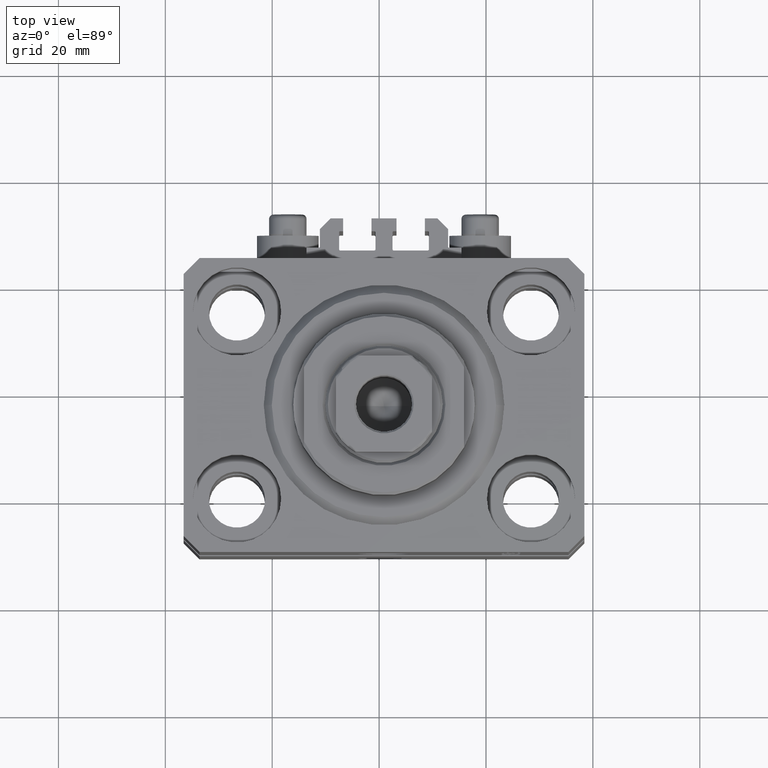
[diagram: clean part render]
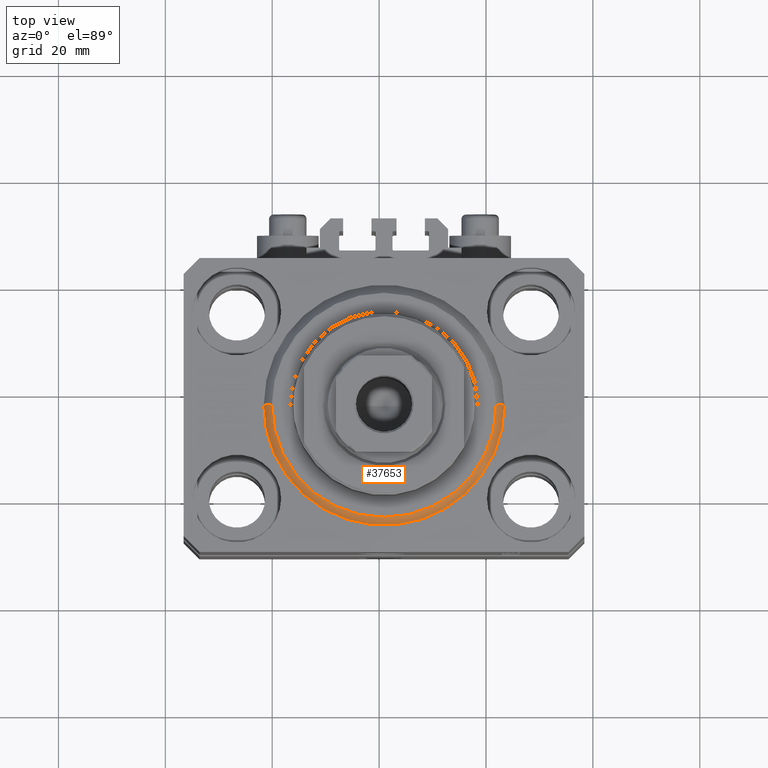
[diagram: same view with one face highlighted and labeled with its STEP entity id]
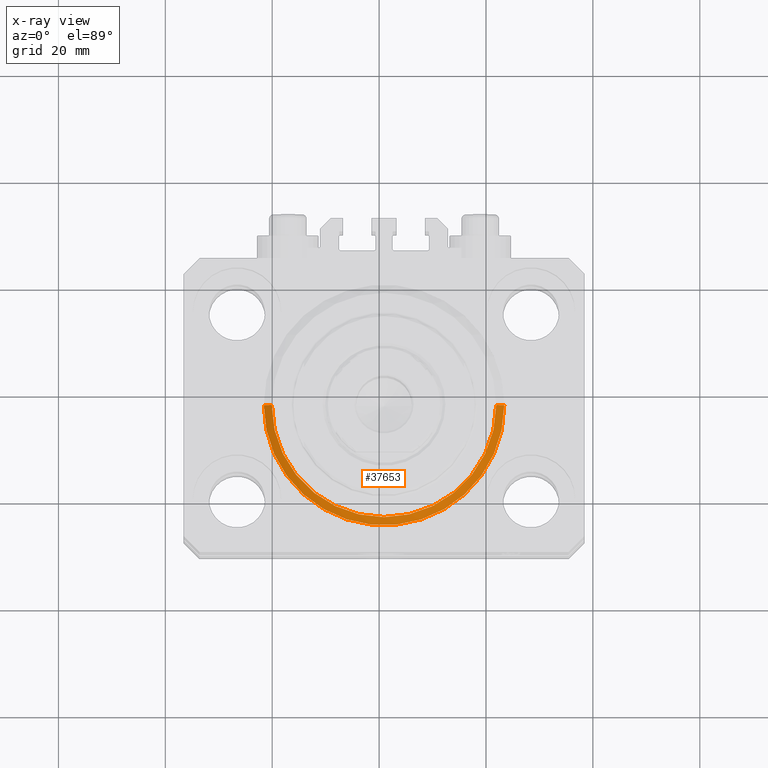
[diagram: x-ray of the same camera — body ghosted, the highlighted face saturated]
A machine part, top view. The second image highlights one B-rep face of the part: STEP entity #37653.
The next image is the same camera in x-ray: the body ghosted, the highlighted face saturated — about 0% of this face is hidden behind the body in this view.
In plain terms, the highlighted conical surface has half-angle 45 deg.
Its self-contained STEP definition (entity closure, byte-faithful):
#2384 = DIRECTION ( 'NONE',  ( -0.7071067811865500152, 8.659560562354962440E-17, 0.7071067811865451302 ) ) ;
#2745 = CARTESIAN_POINT ( 'NONE',  ( 0.000000000000000000, 0.000000000000000000, 1.500000000000039524 ) ) ;
#3140 = CARTESIAN_POINT ( 'NONE',  ( 22.50000000000000355, 2.755455298081544383E-15, 1.500000000000039524 ) ) ;
#4973 = EDGE_CURVE ( 'NONE', #42905, #31186, #27892, .T. ) ;
#6445 = DIRECTION ( 'NONE',  ( 1.000000000000000000, 0.000000000000000000, 0.000000000000000000 ) ) ;
#8462 = EDGE_CURVE ( 'NONE', #42835, #45604, #43874, .T. ) ;
#9025 = VECTOR ( 'NONE', #2384, 1000.000000000000114 ) ;
#10006 = DIRECTION ( 'NONE',  ( -0.000000000000000000, -0.000000000000000000, 1.000000000000000000 ) ) ;
#11109 = EDGE_CURVE ( 'NONE', #42835, #31186, #29979, .T. ) ;
#12487 = DIRECTION ( 'NONE',  ( 1.000000000000000000, 0.000000000000000000, 0.000000000000000000 ) ) ;
#16411 = EDGE_LOOP ( 'NONE', ( #38640, #26729, #35782, #44099 ) ) ;
#19080 = CARTESIAN_POINT ( 'NONE',  ( 22.50000000000000355, 0.000000000000000000, 1.500000000000039524 ) ) ;
#19086 = CARTESIAN_POINT ( 'NONE',  ( -22.50000000000000355, 0.000000000000000000, 1.500000000000039524 ) ) ;
#20374 = LINE ( 'NONE', #34825, #9025 ) ;
#23383 = DIRECTION ( 'NONE',  ( -0.000000000000000000, -0.000000000000000000, -1.000000000000000000 ) ) ;
#26729 = ORIENTED_EDGE ( 'NONE', *, *, #8462, .F. ) ;
#27837 = FACE_OUTER_BOUND ( 'NONE', #16411, .T. ) ;
#27892 = CIRCLE ( 'NONE', #33950, 22.50000000000000355 ) ;
#29584 = VECTOR ( 'NONE', #43954, 1000.000000000000114 ) ;
#29979 = LINE ( 'NONE', #19080, #29584 ) ;
#30925 = DIRECTION ( 'NONE',  ( -0.000000000000000000, -0.000000000000000000, 1.000000000000000000 ) ) ;
#31186 = VERTEX_POINT ( 'NONE', #3140 ) ;
#31654 = EDGE_CURVE ( 'NONE', #45604, #42905, #20374, .T. ) ;
#33950 = AXIS2_PLACEMENT_3D ( 'NONE', #42434, #10006, #6445 ) ;
#34268 = CARTESIAN_POINT ( 'NONE',  ( 0.000000000000000000, 0.000000000000000000, 0.000000000000000000 ) ) ;
#34825 = CARTESIAN_POINT ( 'NONE',  ( -22.50000000000000355, 2.755455298081545172E-15, 1.500000000000039524 ) ) ;
#35782 = ORIENTED_EDGE ( 'NONE', *, *, #11109, .T. ) ;
#37092 = AXIS2_PLACEMENT_3D ( 'NONE', #2745, #30925, #42272 ) ;
#37096 = AXIS2_PLACEMENT_3D ( 'NONE', #34268, #23383, #12487 ) ;
#37653 = ADVANCED_FACE ( 'NONE', ( #27837 ), #40090, .T. ) ;
#38640 = ORIENTED_EDGE ( 'NONE', *, *, #31654, .F. ) ;
#40090 = CONICAL_SURFACE ( 'NONE', #37092, 22.50000000000000355, 0.7853981633974517207 ) ;
#42272 = DIRECTION ( 'NONE',  ( 1.000000000000000000, 0.000000000000000000, 0.000000000000000000 ) ) ;
#42434 = CARTESIAN_POINT ( 'NONE',  ( 0.000000000000000000, 0.000000000000000000, 1.500000000000039524 ) ) ;
#42835 = VERTEX_POINT ( 'NONE', #45455 ) ;
#42905 = VERTEX_POINT ( 'NONE', #19086 ) ;
#43833 = CARTESIAN_POINT ( 'NONE',  ( -20.99999999999995381, 2.663606788145490261E-15, 0.000000000000000000 ) ) ;
#43874 = CIRCLE ( 'NONE', #37096, 20.99999999999995381 ) ;
#43954 = DIRECTION ( 'NONE',  ( 0.7071067811865500152, 0.000000000000000000, 0.7071067811865451302 ) ) ;
#44099 = ORIENTED_EDGE ( 'NONE', *, *, #4973, .F. ) ;
#45455 = CARTESIAN_POINT ( 'NONE',  ( 20.99999999999995381, 0.000000000000000000, 0.000000000000000000 ) ) ;
#45604 = VERTEX_POINT ( 'NONE', #43833 ) ;